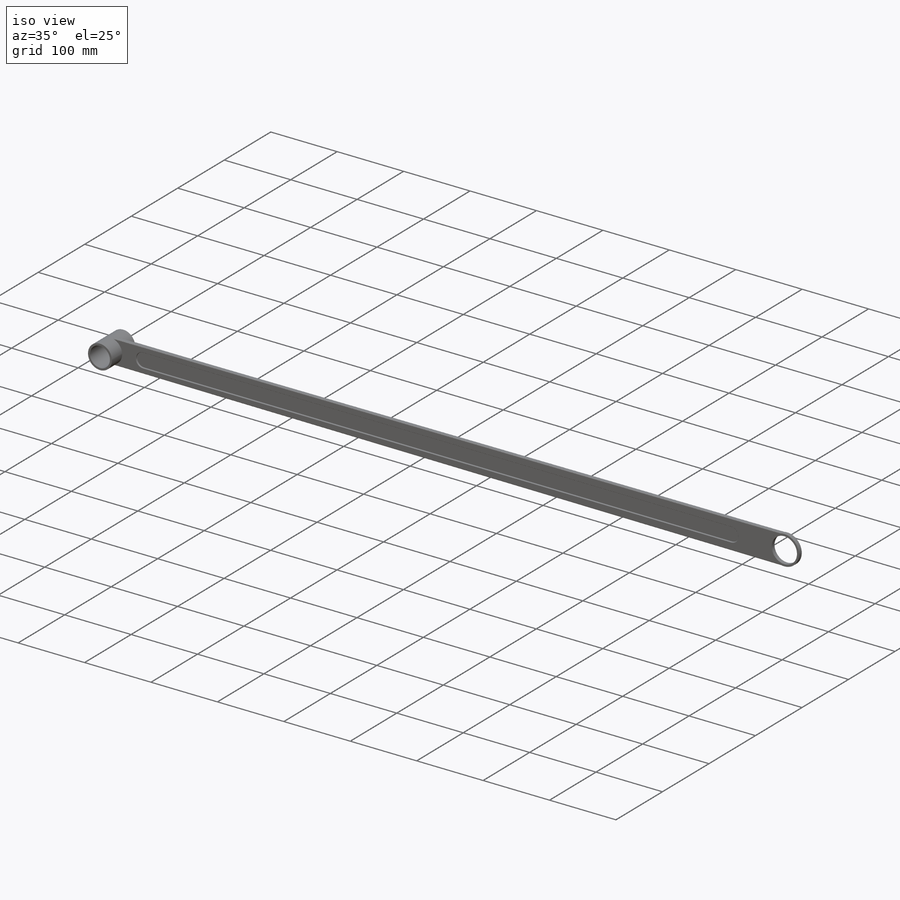
[diagram: iso view]
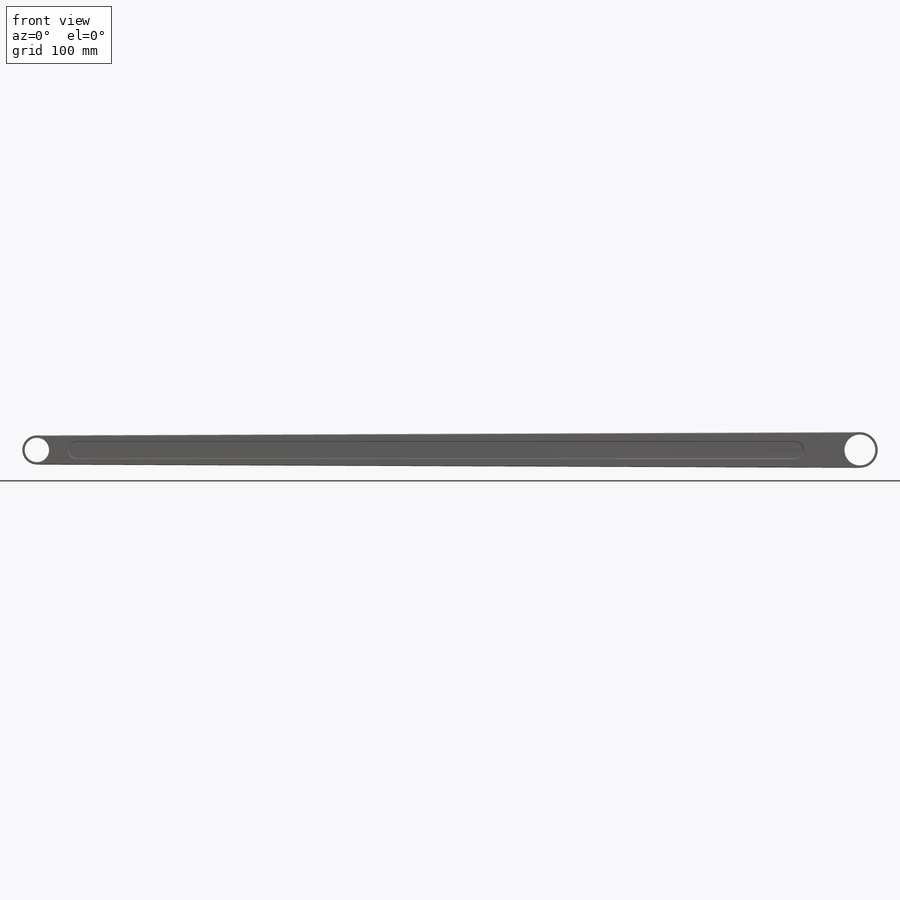
[diagram: front view]
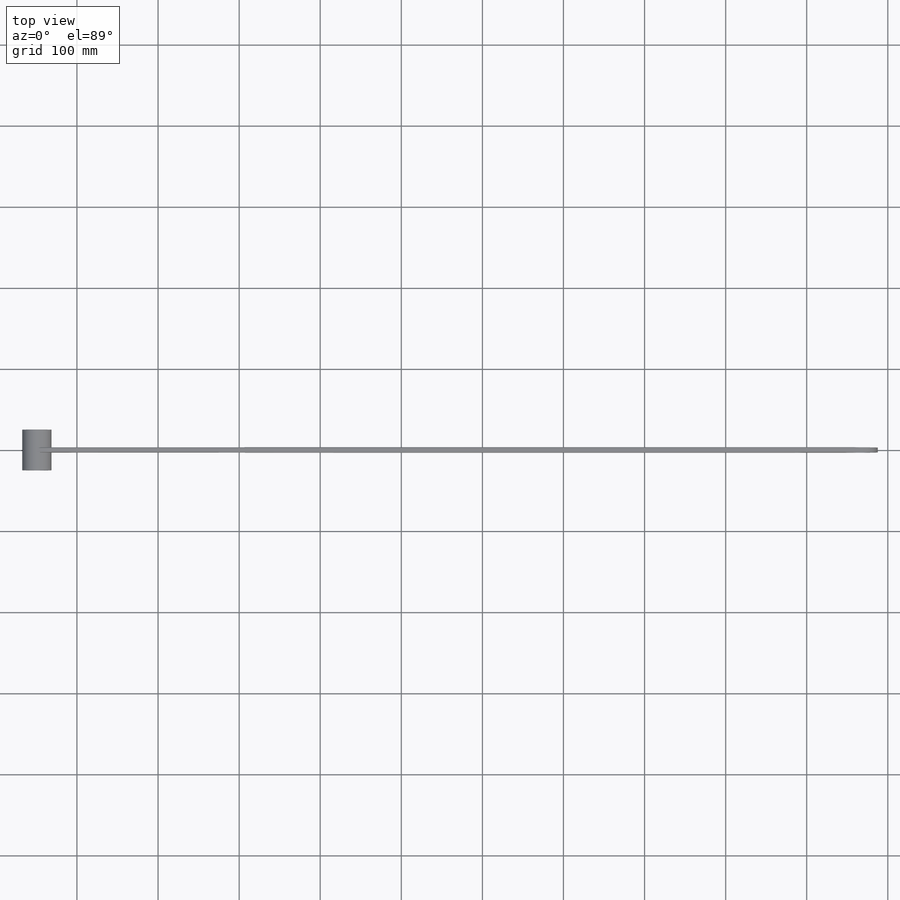
[diagram: top view]
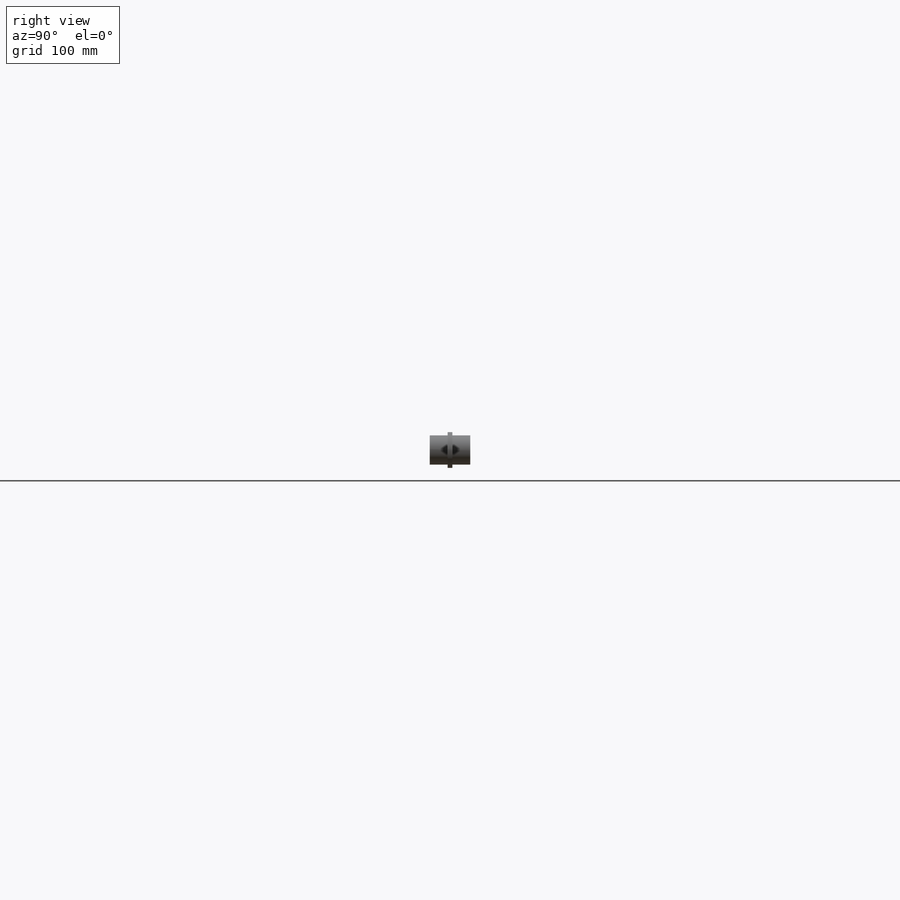
[diagram: right view]
SOLIDWORKS PART (.sldprt)
format: sldprt  version: not decoded by parser v0  size: 249,344 bytes
history: native  units: mm
features: sketch x6, plane x3, extrude x3, mirror x3, material x1, fillet x1, cut_extrude x1 (+13 scaffold rows collapsed)
feature tree (31):
  scaffold x13  (default folders/planes/origin — collapsed)
  material  "材质 <未指定>"
  plane  "前视基准面"
  plane  "上视基准面"
  plane  "右视基准面"
  sketch  "草图1"  dims[c1.D1=38.0mm c1.D2=30.0mm c1.D4=38.0mm c1.D3=1000.0mm c2.D4=3.0mm c2.D5=3.0mm]
  extrude  "凸台-拉伸1"  Depth=50mm
  sketch  "草图2"  dims[D1=38.0mm D3=1033.0mm D2=3.0mm]
  extrude  "凸台-拉伸2"  Depth=6mm
  sketch  "草图4"  dims[D1=30.0mm D2=38.0mm]
  sketch  "草图6"  dims[D1=38.0mm D2=3.0mm]
  sketch  "草图8"
  extrude  "凸台-拉伸4"  Depth=6mm
  fillet  "圆角1"  Radius=1mm
  sketch  "草图9"
  cut_extrude  "切除-拉伸1"  Depth=2mm
  mirror  "镜向1"
  mirror  "圆角2"
  mirror  "圆角3"
decode coverage: 9 of 14 modeling features carry decoded parameters
note: suppression state not decoded; provenance and decode notes live in map.json
